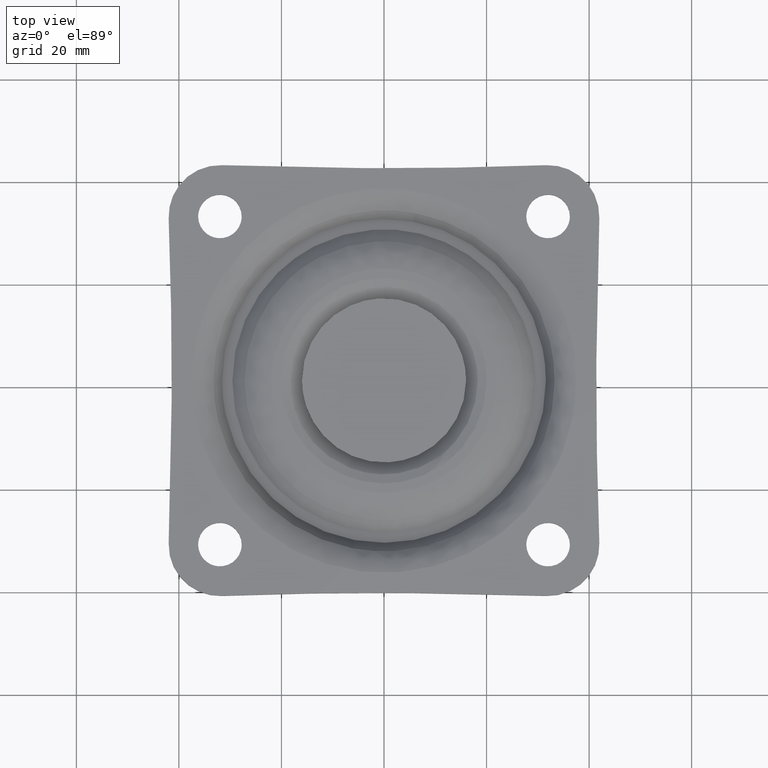
[diagram: clean part render]
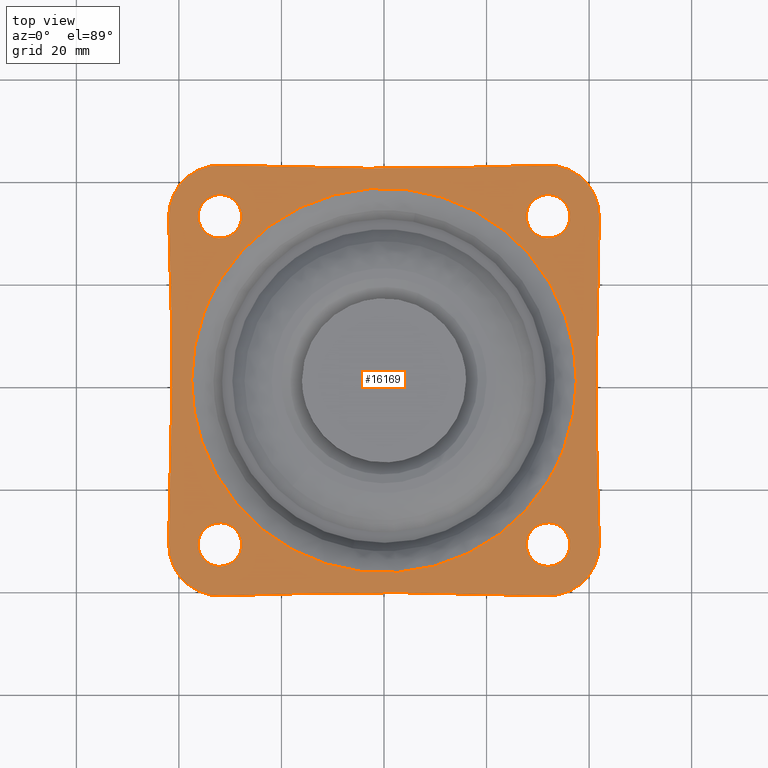
[diagram: same view with one face highlighted and labeled with its STEP entity id]
A machine part, top view. The second image highlights one B-rep face of the part: STEP entity #16169.
In plain terms, the highlighted face is a freeform B-spline surface patch.
Its self-contained STEP definition (entity closure, byte-faithful):
#14494=CARTESIAN_POINT('',(-31.666548842918960,36.236902668347042,1.179612E-016));
#14495=VERTEX_POINT('',#14494);
#14501=CARTESIAN_POINT('',(-36.250000000000007,32.000003999999947,0.0));
#14502=VERTEX_POINT('',#14501);
#14503=CARTESIAN_POINT('',(-31.666548842918974,36.236902668347042,0.0));
#14504=CARTESIAN_POINT('',(-31.833017045098011,36.250003999999947,0.0));
#14505=CARTESIAN_POINT('',(-32.0,36.250003999999947,0.0));
#14506=CARTESIAN_POINT('',(-36.250000000000014,36.250003999999954,0.0));
#14507=CARTESIAN_POINT('',(-36.250000000000007,32.000003999999947,0.0));
#14515=(BOUNDED_CURVE()B_SPLINE_CURVE(2,(#14503,#14504,#14505,#14506,#14507),.UNSPECIFIED.,.F.,.U.)B_SPLINE_CURVE_WITH_KNOTS((3,2,3),(0.736331300623150,0.750000000000000,1.0),.UNSPECIFIED.)CURVE()GEOMETRIC_REPRESENTATION_ITEM()RATIONAL_B_SPLINE_CURVE((0.969723356151746,0.983986122570084,1.0,0.707106781186548,1.0))REPRESENTATION_ITEM(''));
#14516=EDGE_CURVE('',#14495,#14502,#14515,.T.);
#14518=CARTESIAN_POINT('',(-32.333451157081043,27.763105331652859,1.179612E-016));
#14519=VERTEX_POINT('',#14518);
#14520=CARTESIAN_POINT('',(-36.250000000000007,32.000003999999947,0.0));
#14521=CARTESIAN_POINT('',(-36.250000000000021,28.071344410673664,0.0));
#14522=CARTESIAN_POINT('',(-32.333451157081043,27.763105331652866,0.0));
#14530=(BOUNDED_CURVE()B_SPLINE_CURVE(2,(#14520,#14521,#14522),.UNSPECIFIED.,.F.,.U.)B_SPLINE_CURVE_WITH_KNOTS((3,3),(0.0,0.236331300623150),.UNSPECIFIED.)CURVE()GEOMETRIC_REPRESENTATION_ITEM()RATIONAL_B_SPLINE_CURVE((1.0,0.723120658616464,0.969723356151745))REPRESENTATION_ITEM(''));
#14531=EDGE_CURVE('',#14502,#14519,#14530,.T.);
#14577=CARTESIAN_POINT('',(-27.750000000000000,32.000003999999947,0.0));
#14578=VERTEX_POINT('',#14577);
#14579=CARTESIAN_POINT('',(-32.333451157081051,27.763105331652870,0.0));
#14580=CARTESIAN_POINT('',(-32.166982954902011,27.750003999999954,0.0));
#14581=CARTESIAN_POINT('',(-32.0,27.750003999999951,0.0));
#14582=CARTESIAN_POINT('',(-27.749999999999989,27.750003999999954,0.0));
#14583=CARTESIAN_POINT('',(-27.750000000000000,32.000003999999947,0.0));
#14591=(BOUNDED_CURVE()B_SPLINE_CURVE(2,(#14579,#14580,#14581,#14582,#14583),.UNSPECIFIED.,.F.,.U.)B_SPLINE_CURVE_WITH_KNOTS((3,2,3),(0.236331300623149,0.250000000000000,0.500000000000000),.UNSPECIFIED.)CURVE()GEOMETRIC_REPRESENTATION_ITEM()RATIONAL_B_SPLINE_CURVE((0.969723356151744,0.983986122570083,1.0,0.707106781186548,1.0))REPRESENTATION_ITEM(''));
#14592=EDGE_CURVE('',#14519,#14578,#14591,.T.);
#14594=CARTESIAN_POINT('',(-27.750000000000000,32.000003999999947,0.0));
#14595=CARTESIAN_POINT('',(-27.749999999999993,35.928663589326256,0.0));
#14596=CARTESIAN_POINT('',(-31.666548842918974,36.236902668347042,0.0));
#14604=(BOUNDED_CURVE()B_SPLINE_CURVE(2,(#14594,#14595,#14596),.UNSPECIFIED.,.F.,.U.)B_SPLINE_CURVE_WITH_KNOTS((3,3),(0.500000000000000,0.736331300623150),.UNSPECIFIED.)CURVE()GEOMETRIC_REPRESENTATION_ITEM()RATIONAL_B_SPLINE_CURVE((1.0,0.723120658616464,0.969723356151746))REPRESENTATION_ITEM(''));
#14605=EDGE_CURVE('',#14578,#14495,#14604,.T.);
#14676=CARTESIAN_POINT('',(32.333451157081043,36.236902668347042,1.179612E-016));
#14677=VERTEX_POINT('',#14676);
#14683=CARTESIAN_POINT('',(27.750000000000000,32.000003999999947,0.0));
#14684=VERTEX_POINT('',#14683);
#14685=CARTESIAN_POINT('',(32.333451157081051,36.236902668347042,0.0));
#14686=CARTESIAN_POINT('',(32.166982954902004,36.250003999999947,0.0));
#14687=CARTESIAN_POINT('',(32.0,36.250003999999947,0.0));
#14688=CARTESIAN_POINT('',(27.749999999999989,36.250003999999954,0.0));
#14689=CARTESIAN_POINT('',(27.750000000000000,32.000003999999947,0.0));
#14697=(BOUNDED_CURVE()B_SPLINE_CURVE(2,(#14685,#14686,#14687,#14688,#14689),.UNSPECIFIED.,.F.,.U.)B_SPLINE_CURVE_WITH_KNOTS((3,2,3),(0.736331300623150,0.750000000000000,1.0),.UNSPECIFIED.)CURVE()GEOMETRIC_REPRESENTATION_ITEM()RATIONAL_B_SPLINE_CURVE((0.969723356151745,0.983986122570083,1.0,0.707106781186548,1.0))REPRESENTATION_ITEM(''));
#14698=EDGE_CURVE('',#14677,#14684,#14697,.T.);
#14700=CARTESIAN_POINT('',(31.666548842918960,27.763105331652859,1.179612E-016));
#14701=VERTEX_POINT('',#14700);
#14702=CARTESIAN_POINT('',(27.750000000000000,32.000003999999947,0.0));
#14703=CARTESIAN_POINT('',(27.750000000000000,28.071344410673664,0.0));
#14704=CARTESIAN_POINT('',(31.666548842918960,27.763105331652863,0.0));
#14712=(BOUNDED_CURVE()B_SPLINE_CURVE(2,(#14702,#14703,#14704),.UNSPECIFIED.,.F.,.U.)B_SPLINE_CURVE_WITH_KNOTS((3,3),(0.0,0.236331300623150),.UNSPECIFIED.)CURVE()GEOMETRIC_REPRESENTATION_ITEM()RATIONAL_B_SPLINE_CURVE((1.0,0.723120658616464,0.969723356151745))REPRESENTATION_ITEM(''));
#14713=EDGE_CURVE('',#14684,#14701,#14712,.T.);
#14759=CARTESIAN_POINT('',(36.250000000000007,32.000003999999947,0.0));
#14760=VERTEX_POINT('',#14759);
#14761=CARTESIAN_POINT('',(31.666548842918949,27.763105331652863,0.0));
#14762=CARTESIAN_POINT('',(31.833017045098000,27.750003999999951,0.0));
#14763=CARTESIAN_POINT('',(32.0,27.750003999999951,0.0));
#14764=CARTESIAN_POINT('',(36.250000000000014,27.750003999999954,0.0));
#14765=CARTESIAN_POINT('',(36.250000000000007,32.000003999999947,0.0));
#14773=(BOUNDED_CURVE()B_SPLINE_CURVE(2,(#14761,#14762,#14763,#14764,#14765),.UNSPECIFIED.,.F.,.U.)B_SPLINE_CURVE_WITH_KNOTS((3,2,3),(0.236331300623149,0.250000000000000,0.500000000000000),.UNSPECIFIED.)CURVE()GEOMETRIC_REPRESENTATION_ITEM()RATIONAL_B_SPLINE_CURVE((0.969723356151745,0.983986122570083,1.0,0.707106781186548,1.0))REPRESENTATION_ITEM(''));
#14774=EDGE_CURVE('',#14701,#14760,#14773,.T.);
#14776=CARTESIAN_POINT('',(36.250000000000007,32.000003999999947,0.0));
#14777=CARTESIAN_POINT('',(36.250000000000000,35.928663589326241,0.0));
#14778=CARTESIAN_POINT('',(32.333451157081051,36.236902668347042,0.0));
#14786=(BOUNDED_CURVE()B_SPLINE_CURVE(2,(#14776,#14777,#14778),.UNSPECIFIED.,.F.,.U.)B_SPLINE_CURVE_WITH_KNOTS((3,3),(0.500000000000000,0.736331300623150),.UNSPECIFIED.)CURVE()GEOMETRIC_REPRESENTATION_ITEM()RATIONAL_B_SPLINE_CURVE((1.0,0.723120658616464,0.969723356151745))REPRESENTATION_ITEM(''));
#14787=EDGE_CURVE('',#14760,#14677,#14786,.T.);
#14858=CARTESIAN_POINT('',(32.333451157081043,-27.763101331652908,1.179612E-016));
#14859=VERTEX_POINT('',#14858);
#14865=CARTESIAN_POINT('',(27.750000000000000,-32.0,0.0));
#14866=VERTEX_POINT('',#14865);
#14867=CARTESIAN_POINT('',(32.333451157081051,-27.763101331652916,0.0));
#14868=CARTESIAN_POINT('',(32.166982954902004,-27.749999999999996,0.0));
#14869=CARTESIAN_POINT('',(32.0,-27.750000000000000,0.0));
#14870=CARTESIAN_POINT('',(27.749999999999989,-27.749999999999989,0.0));
#14871=CARTESIAN_POINT('',(27.750000000000000,-32.0,0.0));
#14879=(BOUNDED_CURVE()B_SPLINE_CURVE(2,(#14867,#14868,#14869,#14870,#14871),.UNSPECIFIED.,.F.,.U.)B_SPLINE_CURVE_WITH_KNOTS((3,2,3),(0.736331300623150,0.750000000000000,1.0),.UNSPECIFIED.)CURVE()GEOMETRIC_REPRESENTATION_ITEM()RATIONAL_B_SPLINE_CURVE((0.969723356151745,0.983986122570083,1.0,0.707106781186548,1.0))REPRESENTATION_ITEM(''));
#14880=EDGE_CURVE('',#14859,#14866,#14879,.T.);
#14882=CARTESIAN_POINT('',(31.666548842918960,-36.236898668347088,1.179612E-016));
#14883=VERTEX_POINT('',#14882);
#14884=CARTESIAN_POINT('',(27.750000000000000,-32.0,0.0));
#14885=CARTESIAN_POINT('',(27.749999999999989,-35.928659589326294,0.0));
#14886=CARTESIAN_POINT('',(31.666548842918953,-36.236898668347102,0.0));
#14894=(BOUNDED_CURVE()B_SPLINE_CURVE(2,(#14884,#14885,#14886),.UNSPECIFIED.,.F.,.U.)B_SPLINE_CURVE_WITH_KNOTS((3,3),(0.0,0.236331300623149),.UNSPECIFIED.)CURVE()GEOMETRIC_REPRESENTATION_ITEM()RATIONAL_B_SPLINE_CURVE((1.0,0.723120658616464,0.969723356151745))REPRESENTATION_ITEM(''));
#14895=EDGE_CURVE('',#14866,#14883,#14894,.T.);
#14941=CARTESIAN_POINT('',(36.250000000000007,-32.0,0.0));
#14942=VERTEX_POINT('',#14941);
#14943=CARTESIAN_POINT('',(31.666548842918960,-36.236898668347102,0.0));
#14944=CARTESIAN_POINT('',(31.833017045098003,-36.250000000000000,0.0));
#14945=CARTESIAN_POINT('',(32.0,-36.250000000000007,0.0));
#14946=CARTESIAN_POINT('',(36.250000000000014,-36.250000000000014,0.0));
#14947=CARTESIAN_POINT('',(36.250000000000007,-32.0,0.0));
#14955=(BOUNDED_CURVE()B_SPLINE_CURVE(2,(#14943,#14944,#14945,#14946,#14947),.UNSPECIFIED.,.F.,.U.)B_SPLINE_CURVE_WITH_KNOTS((3,2,3),(0.236331300623150,0.250000000000000,0.500000000000000),.UNSPECIFIED.)CURVE()GEOMETRIC_REPRESENTATION_ITEM()RATIONAL_B_SPLINE_CURVE((0.969723356151745,0.983986122570083,1.0,0.707106781186548,1.0))REPRESENTATION_ITEM(''));
#14956=EDGE_CURVE('',#14883,#14942,#14955,.T.);
#14958=CARTESIAN_POINT('',(36.250000000000007,-32.0,0.0));
#14959=CARTESIAN_POINT('',(36.250000000000000,-28.071340410673709,0.0));
#14960=CARTESIAN_POINT('',(32.333451157081051,-27.763101331652916,0.0));
#14968=(BOUNDED_CURVE()B_SPLINE_CURVE(2,(#14958,#14959,#14960),.UNSPECIFIED.,.F.,.U.)B_SPLINE_CURVE_WITH_KNOTS((3,3),(0.500000000000000,0.736331300623150),.UNSPECIFIED.)CURVE()GEOMETRIC_REPRESENTATION_ITEM()RATIONAL_B_SPLINE_CURVE((1.0,0.723120658616464,0.969723356151745))REPRESENTATION_ITEM(''));
#14969=EDGE_CURVE('',#14942,#14859,#14968,.T.);
#15040=CARTESIAN_POINT('',(-31.666548842918960,-27.763101331652908,1.179612E-016));
#15041=VERTEX_POINT('',#15040);
#15047=CARTESIAN_POINT('',(-36.250000000000007,-32.0,0.0));
#15048=VERTEX_POINT('',#15047);
#15049=CARTESIAN_POINT('',(-31.666548842918974,-27.763101331652908,0.0));
#15050=CARTESIAN_POINT('',(-31.833017045098011,-27.750000000000004,0.0));
#15051=CARTESIAN_POINT('',(-32.0,-27.750000000000000,0.0));
#15052=CARTESIAN_POINT('',(-36.250000000000014,-27.749999999999989,0.0));
#15053=CARTESIAN_POINT('',(-36.250000000000007,-32.0,0.0));
#15061=(BOUNDED_CURVE()B_SPLINE_CURVE(2,(#15049,#15050,#15051,#15052,#15053),.UNSPECIFIED.,.F.,.U.)B_SPLINE_CURVE_WITH_KNOTS((3,2,3),(0.736331300623150,0.750000000000000,1.0),.UNSPECIFIED.)CURVE()GEOMETRIC_REPRESENTATION_ITEM()RATIONAL_B_SPLINE_CURVE((0.969723356151746,0.983986122570084,1.0,0.707106781186548,1.0))REPRESENTATION_ITEM(''));
#15062=EDGE_CURVE('',#15041,#15048,#15061,.T.);
#15064=CARTESIAN_POINT('',(-32.333451157081043,-36.236898668347102,1.179612E-016));
#15065=VERTEX_POINT('',#15064);
#15066=CARTESIAN_POINT('',(-36.250000000000007,-32.0,0.0));
#15067=CARTESIAN_POINT('',(-36.250000000000000,-35.928659589326301,0.0));
#15068=CARTESIAN_POINT('',(-32.333451157081051,-36.236898668347095,0.0));
#15076=(BOUNDED_CURVE()B_SPLINE_CURVE(2,(#15066,#15067,#15068),.UNSPECIFIED.,.F.,.U.)B_SPLINE_CURVE_WITH_KNOTS((3,3),(0.0,0.236331300623150),.UNSPECIFIED.)CURVE()GEOMETRIC_REPRESENTATION_ITEM()RATIONAL_B_SPLINE_CURVE((1.0,0.723120658616464,0.969723356151745))REPRESENTATION_ITEM(''));
#15077=EDGE_CURVE('',#15048,#15065,#15076,.T.);
#15123=CARTESIAN_POINT('',(-27.750000000000000,-32.0,0.0));
#15124=VERTEX_POINT('',#15123);
#15125=CARTESIAN_POINT('',(-32.333451157081051,-36.236898668347095,0.0));
#15126=CARTESIAN_POINT('',(-32.166982954902004,-36.250000000000007,0.0));
#15127=CARTESIAN_POINT('',(-32.0,-36.250000000000007,0.0));
#15128=CARTESIAN_POINT('',(-27.749999999999989,-36.250000000000014,0.0));
#15129=CARTESIAN_POINT('',(-27.750000000000000,-32.0,0.0));
#15137=(BOUNDED_CURVE()B_SPLINE_CURVE(2,(#15125,#15126,#15127,#15128,#15129),.UNSPECIFIED.,.F.,.U.)B_SPLINE_CURVE_WITH_KNOTS((3,2,3),(0.236331300623150,0.250000000000000,0.500000000000000),.UNSPECIFIED.)CURVE()GEOMETRIC_REPRESENTATION_ITEM()RATIONAL_B_SPLINE_CURVE((0.969723356151745,0.983986122570083,1.0,0.707106781186548,1.0))REPRESENTATION_ITEM(''));
#15138=EDGE_CURVE('',#15065,#15124,#15137,.T.);
#15140=CARTESIAN_POINT('',(-27.750000000000000,-32.0,0.0));
#15141=CARTESIAN_POINT('',(-27.749999999999993,-28.071340410673702,0.0));
#15142=CARTESIAN_POINT('',(-31.666548842918974,-27.763101331652908,0.0));
#15150=(BOUNDED_CURVE()B_SPLINE_CURVE(2,(#15140,#15141,#15142),.UNSPECIFIED.,.F.,.U.)B_SPLINE_CURVE_WITH_KNOTS((3,3),(0.500000000000000,0.736331300623150),.UNSPECIFIED.)CURVE()GEOMETRIC_REPRESENTATION_ITEM()RATIONAL_B_SPLINE_CURVE((1.0,0.723120658616464,0.969723356151746))REPRESENTATION_ITEM(''));
#15151=EDGE_CURVE('',#15124,#15041,#15150,.T.);
#15478=CARTESIAN_POINT('',(-31.914067990563421,19.695143982894379,-7.925526E-016));
#15479=VERTEX_POINT('',#15478);
#15493=CARTESIAN_POINT('',(-37.502085706826037,0.0,0.0));
#15494=VERTEX_POINT('',#15493);
#15495=CARTESIAN_POINT('',(-37.502085706826037,0.0,0.0));
#15496=CARTESIAN_POINT('',(-37.502085705981443,10.640303996957126,-3.962763E-016));
#15497=CARTESIAN_POINT('',(-31.914067990563424,19.695143982894376,-7.925526E-016));
#15505=(BOUNDED_CURVE()B_SPLINE_CURVE(2,(#15495,#15496,#15497),.UNSPECIFIED.,.F.,.U.)B_SPLINE_CURVE_WITH_KNOTS((3,3),(0.0,0.089762955612182),.UNSPECIFIED.)CURVE()GEOMETRIC_REPRESENTATION_ITEM()RATIONAL_B_SPLINE_CURVE((1.0,0.894836156002155,0.865190851690591))REPRESENTATION_ITEM(''));
#15506=EDGE_CURVE('',#15494,#15479,#15505,.T.);
#15508=CARTESIAN_POINT('',(31.914067990563421,-19.695143982894390,-7.315870E-016));
#15509=VERTEX_POINT('',#15508);
#15510=CARTESIAN_POINT('',(31.914067990563421,-19.695143982894390,-7.315870E-016));
#15511=CARTESIAN_POINT('',(30.619805458893630,-21.792971788016160,-7.247685E-016));
#15512=CARTESIAN_POINT('',(27.923524103680140,-25.327808713038898,-7.082515E-016));
#15513=CARTESIAN_POINT('',(23.905755037616021,-29.013462607860870,-6.792623E-016));
#15514=CARTESIAN_POINT('',(20.413693390166380,-31.524900545341350,-6.521511E-016));
#15515=CARTESIAN_POINT('',(17.628572245231979,-33.156656483443300,-6.295010E-016));
#15516=CARTESIAN_POINT('',(14.426538910926590,-34.669942798833929,-6.024565E-016));
#15517=CARTESIAN_POINT('',(10.744381102255600,-36.026675445411257,-5.702956E-016));
#15518=CARTESIAN_POINT('',(6.428298811534779,-37.044849591556087,-5.310144E-016));
#15519=CARTESIAN_POINT('',(1.204781175124685,-37.610192839807247,-4.816291E-016));
#15520=CARTESIAN_POINT('',(-3.930664690330918,-37.436758115847731,-4.310582E-016));
#15521=CARTESIAN_POINT('',(-8.663399511469756,-36.561015337947516,-3.824718E-016));
#15522=CARTESIAN_POINT('',(-13.150571636092421,-35.226522354320572,-3.350110E-016));
#15523=CARTESIAN_POINT('',(-17.216128759789889,-33.445103135920426,-2.904258E-016));
#15524=CARTESIAN_POINT('',(-21.378637659211499,-30.910333849212190,-2.428100E-016));
#15525=CARTESIAN_POINT('',(-24.678287439665521,-28.345703005160338,-2.035279E-016));
#15526=CARTESIAN_POINT('',(-27.437949999820109,-25.645612171143650,-1.691379E-016));
#15527=CARTESIAN_POINT('',(-30.013724971431820,-22.604822877068852,-1.355987E-016));
#15528=CARTESIAN_POINT('',(-32.042181816165908,-19.618152100544059,-1.075478E-016));
#15529=CARTESIAN_POINT('',(-34.137421278383748,-15.717846934989421,-7.631707E-017));
#15530=CARTESIAN_POINT('',(-35.624765904471147,-12.012711654500441,-5.155582E-017));
#15531=CARTESIAN_POINT('',(-36.683549268820713,-8.038325081614559,-3.022960E-017));
#15532=CARTESIAN_POINT('',(-37.334056569965988,-4.234590536484398,-1.335795E-017));
#15533=CARTESIAN_POINT('',(-37.502143252897547,-1.580073506177790,-4.372207E-018));
#15534=CARTESIAN_POINT('',(-37.502085706826037,0.0,0.0));
#15535=B_SPLINE_CURVE_WITH_KNOTS('',3,(#15510,#15511,#15512,#15513,#15514,#15515,#15516,#15517,#15518,#15519,#15520,#15521,#15522,#15523,#15524,#15525,#15526,#15527,#15528,#15529,#15530,#15531,#15532,#15533,#15534),.UNSPECIFIED.,.F.,.U.,(4,1,1,1,1,1,1,1,1,1,1,1,1,1,1,1,1,1,1,1,1,1,4),(0.000000063989489,7.394820992053340,13.272759540853929,16.306532607699861,20.288364144795981,22.942941252363969,26.924734203500289,32.044268597981258,36.215681808169919,42.662384551423507,47.402664824145383,50.626067850185521,56.693612256004577,60.675428589260122,65.226100874294559,69.207934392970316,72.241709457906296,77.171613979242522,80.015754333913350,85.514507913020026,89.117109490335267,92.340499205824514,97.080715608475828),.UNSPECIFIED.);
#15536=EDGE_CURVE('',#15509,#15494,#15535,.T.);
#15585=CARTESIAN_POINT('',(37.502085706826037,0.0,0.0));
#15586=VERTEX_POINT('',#15585);
#15587=CARTESIAN_POINT('',(37.502085706826037,0.0,0.0));
#15588=CARTESIAN_POINT('',(37.502085705981450,-10.640303996957131,-3.657935E-016));
#15589=CARTESIAN_POINT('',(31.914067990563417,-19.695143982894383,-7.315870E-016));
#15597=(BOUNDED_CURVE()B_SPLINE_CURVE(2,(#15587,#15588,#15589),.UNSPECIFIED.,.F.,.U.)B_SPLINE_CURVE_WITH_KNOTS((3,3),(0.500000000000000,0.589762955612183),.UNSPECIFIED.)CURVE()GEOMETRIC_REPRESENTATION_ITEM()RATIONAL_B_SPLINE_CURVE((1.0,0.894836156002155,0.865190851690591))REPRESENTATION_ITEM(''));
#15598=EDGE_CURVE('',#15586,#15509,#15597,.T.);
#15600=CARTESIAN_POINT('',(-31.914067990563421,19.695143982894379,-7.925526E-016));
#15601=CARTESIAN_POINT('',(-31.084287959028622,21.039814182169589,-7.878159E-016));
#15602=CARTESIAN_POINT('',(-29.217813535415239,23.675725806802330,-7.759959E-016));
#15603=CARTESIAN_POINT('',(-26.039898205609671,27.121077407468022,-7.527450E-016));
#15604=CARTESIAN_POINT('',(-22.703991595458231,29.941523364708459,-7.259511E-016));
#15605=CARTESIAN_POINT('',(-19.555566011488789,32.064045151172117,-6.990458E-016));
#15606=CARTESIAN_POINT('',(-16.501482918728460,33.731044151020193,-6.717718E-016));
#15607=CARTESIAN_POINT('',(-13.079709673876399,35.222983132939412,-6.400876E-016));
#15608=CARTESIAN_POINT('',(-8.851856165872862,36.553985359301052,-5.994032E-016));
#15609=CARTESIAN_POINT('',(-4.233508979410042,37.363493447928882,-5.530291E-016));
#15610=CARTESIAN_POINT('',(0.382345080853592,37.581132368870087,-5.049069E-016));
#15611=CARTESIAN_POINT('',(4.741047625138749,37.290272967682171,-4.579774E-016));
#15612=CARTESIAN_POINT('',(8.724042873997638,36.543000902052000,-4.136496E-016));
#15613=CARTESIAN_POINT('',(13.150567915739639,35.226522513832897,-3.629286E-016));
#15614=CARTESIAN_POINT('',(17.564622789657651,33.292416243312253,-3.104877E-016));
#15615=CARTESIAN_POINT('',(22.281668464818988,30.321048697371531,-2.517353E-016));
#15616=CARTESIAN_POINT('',(25.857295111729080,27.286648735088150,-2.048551E-016));
#15617=CARTESIAN_POINT('',(29.085856594280909,23.809116157060600,-1.603138E-016));
#15618=CARTESIAN_POINT('',(31.593786737747131,20.383854452889029,-1.235439E-016));
#15619=CARTESIAN_POINT('',(33.626167751635542,16.734268524099502,-9.112643E-017));
#15620=CARTESIAN_POINT('',(35.070335912331217,13.430163491599780,-6.596029E-017));
#15621=CARTESIAN_POINT('',(36.328410806519642,9.647461776089989,-4.132570E-017));
#15622=CARTESIAN_POINT('',(37.268730390661773,5.119465505853970,-1.781431E-017));
#15623=CARTESIAN_POINT('',(37.502159933510242,1.706496777955555,-5.115407E-018));
#15624=CARTESIAN_POINT('',(37.502085706826037,0.0,0.0));
#15625=B_SPLINE_CURVE_WITH_KNOTS('',3,(#15600,#15601,#15602,#15603,#15604,#15605,#15606,#15607,#15608,#15609,#15610,#15611,#15612,#15613,#15614,#15615,#15616,#15617,#15618,#15619,#15620,#15621,#15622,#15623,#15624),.UNSPECIFIED.,.F.,.U.,(4,1,1,1,1,1,1,1,1,1,1,1,1,1,1,1,1,1,1,1,1,1,4),(0.000000063994136,4.740258845314230,9.670151341734950,14.031202597090809,17.823421638121520,21.046801718666810,24.459815151004261,29.010488594254060,34.319605386957200,38.490917560580073,42.852014610375562,47.402664824148538,50.626067850188342,56.693612256006972,61.813111229646083,67.311825348601644,70.724821768479003,76.033924119183553,80.015754333914870,83.239146683980351,86.841748705107406,91.961230190176920,97.080715608475785),.UNSPECIFIED.);
#15626=EDGE_CURVE('',#15479,#15586,#15625,.T.);
#15817=CARTESIAN_POINT('',(41.992948058225352,31.625154184200799,0.0));
#15818=VERTEX_POINT('',#15817);
#15824=CARTESIAN_POINT('',(41.992949260289649,-31.625149835499101,0.0));
#15825=VERTEX_POINT('',#15824);
#15826=CARTESIAN_POINT('',(41.992948058225352,31.625154184200799,0.0));
#15827=CARTESIAN_POINT('',(40.806592197343292,0.000002151804351,0.0));
#15828=CARTESIAN_POINT('',(41.992949395424752,-31.625149830429599,0.0));
#15836=(BOUNDED_CURVE()B_SPLINE_CURVE(2,(#15826,#15827,#15828),.UNSPECIFIED.,.F.,.U.)CURVE()GEOMETRIC_REPRESENTATION_ITEM()QUASI_UNIFORM_CURVE()RATIONAL_B_SPLINE_CURVE((1.0,0.999297126544997,1.0))REPRESENTATION_ITEM(''));
#15837=EDGE_CURVE('',#15818,#15825,#15836,.T.);
#15863=CARTESIAN_POINT('',(31.625108336017298,-41.992987745339192,0.0));
#15864=VERTEX_POINT('',#15863);
#15865=CARTESIAN_POINT('',(31.625108336017298,-41.992987745339192,0.0));
#15866=CARTESIAN_POINT('',(32.438866516035660,-42.023725480044803,0.0));
#15867=CARTESIAN_POINT('',(33.987721461676863,-41.891954627832718,0.0));
#15868=CARTESIAN_POINT('',(35.954753324020778,-41.248672035286582,0.0));
#15869=CARTESIAN_POINT('',(37.386247948619307,-40.461776300572431,0.0));
#15870=CARTESIAN_POINT('',(38.455669814395861,-39.669625677039349,0.0));
#15871=CARTESIAN_POINT('',(39.514451443713043,-38.664033543589511,0.0));
#15872=CARTESIAN_POINT('',(40.557385808186083,-37.293339241459961,0.0));
#15873=CARTESIAN_POINT('',(41.375202283784013,-35.632214303959309,0.0));
#15874=CARTESIAN_POINT('',(41.917241476087320,-33.729492134731210,0.0));
#15875=CARTESIAN_POINT('',(42.022030884877331,-32.396072057931050,0.0));
#15876=CARTESIAN_POINT('',(41.992949260289649,-31.625149835499101,0.0));
#15877=B_SPLINE_CURVE_WITH_KNOTS('',3,(#15865,#15866,#15867,#15868,#15869,#15870,#15871,#15872,#15873,#15874,#15875,#15876),.UNSPECIFIED.,.F.,.U.,(4,1,1,1,1,1,1,1,1,4),(0.000000029347877,2.442969275225778,4.628815183901805,6.171750811582196,7.328954961936727,8.614725557168637,10.543391547728399,12.472071925009089,14.143601867415430,16.457989066502041),.UNSPECIFIED.);
#15878=EDGE_CURVE('',#15864,#15825,#15877,.T.);
#15904=CARTESIAN_POINT('',(-31.625081056370949,-41.992986306088547,0.0));
#15905=VERTEX_POINT('',#15904);
#15906=CARTESIAN_POINT('',(31.625108336017391,-41.992987745339207,0.0));
#15907=CARTESIAN_POINT('',(0.000013666818445,-40.806635694541903,0.0));
#15908=CARTESIAN_POINT('',(-31.625081040790871,-41.992986721413942,0.0));
#15916=(BOUNDED_CURVE()B_SPLINE_CURVE(2,(#15906,#15907,#15908),.UNSPECIFIED.,.F.,.U.)CURVE()GEOMETRIC_REPRESENTATION_ITEM()QUASI_UNIFORM_CURVE()RATIONAL_B_SPLINE_CURVE((1.0,0.999297129907167,1.0))REPRESENTATION_ITEM(''));
#15917=EDGE_CURVE('',#15864,#15905,#15916,.T.);
#15943=CARTESIAN_POINT('',(-41.992918253317150,-31.625148198415950,0.0));
#15944=VERTEX_POINT('',#15943);
#15945=CARTESIAN_POINT('',(-41.992918253317150,-31.625148198415950,0.0));
#15946=CARTESIAN_POINT('',(-42.023625952349491,-32.438906082953501,0.0));
#15947=CARTESIAN_POINT('',(-41.917477891468607,-33.686573302525737,0.0));
#15948=CARTESIAN_POINT('',(-41.480339239338669,-35.258971899345212,0.0));
#15949=CARTESIAN_POINT('',(-40.937526632884079,-36.567581982327241,0.0));
#15950=CARTESIAN_POINT('',(-40.095298198310452,-37.969261280182103,0.0));
#15951=CARTESIAN_POINT('',(-39.007108790404637,-39.191173350264187,0.0));
#15952=CARTESIAN_POINT('',(-37.747840473078213,-40.228312128190232,0.0));
#15953=CARTESIAN_POINT('',(-36.530631834316452,-40.959762953718510,0.0));
#15954=CARTESIAN_POINT('',(-35.019173639070800,-41.575417539669957,0.0));
#15955=CARTESIAN_POINT('',(-33.427939142707778,-41.952236332810962,0.0));
#15956=CARTESIAN_POINT('',(-32.224678796352883,-42.015527989643772,0.0));
#15957=CARTESIAN_POINT('',(-31.625081056370949,-41.992986306088547,0.0));
#15958=B_SPLINE_CURVE_WITH_KNOTS('',3,(#15945,#15946,#15947,#15948,#15949,#15950,#15951,#15952,#15953,#15954,#15955,#15956,#15957),.UNSPECIFIED.,.F.,.U.,(4,1,1,1,1,1,1,1,1,1,4),(0.000000029323044,2.442968682533385,3.728758524585171,4.885971854338695,6.686058768304182,8.614723467282079,9.771927575389821,11.572014865880019,12.857806548028060,14.657914119143291,16.457985073782542),.UNSPECIFIED.);
#15959=EDGE_CURVE('',#15944,#15905,#15958,.T.);
#15985=CARTESIAN_POINT('',(-41.992915299545899,31.625148881960602,0.0));
#15986=VERTEX_POINT('',#15985);
#15987=CARTESIAN_POINT('',(-41.992918253317193,-31.625148198416021,0.0));
#15988=CARTESIAN_POINT('',(-40.806561972777210,0.000000286368831,0.0));
#15989=CARTESIAN_POINT('',(-41.992915652550593,31.625148868718089,0.0));
#15997=(BOUNDED_CURVE()B_SPLINE_CURVE(2,(#15987,#15988,#15989),.UNSPECIFIED.,.F.,.U.)CURVE()GEOMETRIC_REPRESENTATION_ITEM()QUASI_UNIFORM_CURVE()RATIONAL_B_SPLINE_CURVE((1.0,0.999297128224654,1.0))REPRESENTATION_ITEM(''));
#15998=EDGE_CURVE('',#15944,#15986,#15997,.T.);
#16024=CARTESIAN_POINT('',(-31.625078908228200,41.992986641414049,0.0));
#16025=VERTEX_POINT('',#16024);
#16026=CARTESIAN_POINT('',(-31.625078908228200,41.992986641414049,0.0));
#16027=CARTESIAN_POINT('',(-32.353172681482100,42.020422943728121,0.0));
#16028=CARTESIAN_POINT('',(-33.514258566841249,41.936718372080527,0.0));
#16029=CARTESIAN_POINT('',(-35.014050726692652,41.561067362164572,0.0));
#16030=CARTESIAN_POINT('',(-36.456429056327487,41.005877475131257,0.0));
#16031=CARTESIAN_POINT('',(-37.717733181793932,40.258899758232353,0.0));
#16032=CARTESIAN_POINT('',(-38.969826814993887,39.213987582914513,0.0));
#16033=CARTESIAN_POINT('',(-39.985305412920127,38.102804142109640,0.0));
#16034=CARTESIAN_POINT('',(-40.978937480771002,36.541778326536701,0.0));
#16035=CARTESIAN_POINT('',(-41.608492986738099,34.937434005376232,0.0));
#16036=CARTESIAN_POINT('',(-41.961152034436083,33.256096011681187,0.0));
#16037=CARTESIAN_POINT('',(-42.015466579367768,32.224748297103488,0.0));
#16038=CARTESIAN_POINT('',(-41.992915299545899,31.625148881960602,0.0));
#16039=B_SPLINE_CURVE_WITH_KNOTS('',3,(#16026,#16027,#16028,#16029,#16030,#16031,#16032,#16033,#16034,#16035,#16036,#16037,#16038),.UNSPECIFIED.,.F.,.U.,(4,1,1,1,1,1,1,1,1,1,4),(0.000000029298832,2.185812144566963,3.471599384476802,4.628813650030267,6.814637342224206,7.843263740711501,9.514771748703666,11.314855741935331,13.372122286249940,14.657912818025791,16.457983612886299),.UNSPECIFIED.);
#16040=EDGE_CURVE('',#16025,#15986,#16039,.T.);
#16066=CARTESIAN_POINT('',(31.625108336016851,41.992987745338048,0.0));
#16067=VERTEX_POINT('',#16066);
#16068=CARTESIAN_POINT('',(-31.625078908228112,41.992986641414042,0.0));
#16069=CARTESIAN_POINT('',(0.000014734599592,40.806635734596426,0.0));
#16070=CARTESIAN_POINT('',(31.625108336016961,41.992987745338112,0.0));
#16078=(BOUNDED_CURVE()B_SPLINE_CURVE(2,(#16068,#16069,#16070),.UNSPECIFIED.,.F.,.U.)CURVE()GEOMETRIC_REPRESENTATION_ITEM()QUASI_UNIFORM_CURVE()RATIONAL_B_SPLINE_CURVE((1.0,0.999297129954580,1.0))REPRESENTATION_ITEM(''));
#16079=EDGE_CURVE('',#16025,#16067,#16078,.T.);
#16105=CARTESIAN_POINT('',(41.992948058225352,31.625154184200799,0.0));
#16106=CARTESIAN_POINT('',(42.023682453903781,32.438913869556238,0.0));
#16107=CARTESIAN_POINT('',(41.891905204095657,33.987755417138992,0.0));
#16108=CARTESIAN_POINT('',(41.195055424325282,36.118744073249502,0.0));
#16109=CARTESIAN_POINT('',(40.239443088691452,37.756080397519042,0.0));
#16110=CARTESIAN_POINT('',(39.268494881579741,38.904449777521528,0.0));
#16111=CARTESIAN_POINT('',(38.260711928980697,39.837369375433951,0.0));
#16112=CARTESIAN_POINT('',(37.204506737903223,40.578442240194860,0.0));
#16113=CARTESIAN_POINT('',(35.788566932725530,41.298389223399361,0.0));
#16114=CARTESIAN_POINT('',(33.987877970693603,41.887399752423853,0.0));
#16115=CARTESIAN_POINT('',(32.481691048677803,42.025370530796913,0.0));
#16116=CARTESIAN_POINT('',(31.625108336016851,41.992987745338048,0.0));
#16117=B_SPLINE_CURVE_WITH_KNOTS('',3,(#16105,#16106,#16107,#16108,#16109,#16110,#16111,#16112,#16113,#16114,#16115,#16116),.UNSPECIFIED.,.F.,.U.,(4,1,1,1,1,1,1,1,1,4),(-0.000000094885387,2.442968379629118,4.628813598116899,6.686058154966455,8.100416944660809,9.129034967602777,10.800543140064230,11.957751221129600,13.886439092191941,16.457983742720330),.UNSPECIFIED.);
#16118=EDGE_CURVE('',#15818,#16067,#16117,.T.);
#16124=CARTESIAN_POINT('',(-46.194085812739807,46.194161494424037,0.0));
#16125=CARTESIAN_POINT('',(46.194117570604483,46.194161494424037,0.0));
#16126=CARTESIAN_POINT('',(-46.194085812739807,-46.194161494425202,0.0));
#16127=CARTESIAN_POINT('',(46.194117570604483,-46.194161494425202,0.0));
#16128=B_SPLINE_SURFACE_WITH_KNOTS('',1,1,((#16124,#16126),(#16125,#16127)),.UNSPECIFIED.,.F.,.F.,.U.,(2,2),(2,2),(0.0,92.388203383344290),(0.0,92.388322988849239),.UNSPECIFIED.);
#16129=ORIENTED_EDGE('',*,*,#16118,.T.);
#16130=ORIENTED_EDGE('',*,*,#16079,.F.);
#16131=ORIENTED_EDGE('',*,*,#16040,.T.);
#16132=ORIENTED_EDGE('',*,*,#15998,.F.);
#16133=ORIENTED_EDGE('',*,*,#15959,.T.);
#16134=ORIENTED_EDGE('',*,*,#15917,.F.);
#16135=ORIENTED_EDGE('',*,*,#15878,.T.);
#16136=ORIENTED_EDGE('',*,*,#15837,.F.);
#16137=EDGE_LOOP('',(#16129,#16130,#16131,#16132,#16133,#16134,#16135,#16136));
#16138=FACE_OUTER_BOUND('',#16137,.T.);
#16139=ORIENTED_EDGE('',*,*,#15506,.T.);
#16140=ORIENTED_EDGE('',*,*,#15626,.T.);
#16141=ORIENTED_EDGE('',*,*,#15598,.T.);
#16142=ORIENTED_EDGE('',*,*,#15536,.T.);
#16143=EDGE_LOOP('',(#16139,#16140,#16141,#16142));
#16144=FACE_BOUND('',#16143,.T.);
#16145=ORIENTED_EDGE('',*,*,#15151,.F.);
#16146=ORIENTED_EDGE('',*,*,#15138,.F.);
#16147=ORIENTED_EDGE('',*,*,#15077,.F.);
#16148=ORIENTED_EDGE('',*,*,#15062,.F.);
#16149=EDGE_LOOP('',(#16145,#16146,#16147,#16148));
#16150=FACE_BOUND('',#16149,.T.);
#16151=ORIENTED_EDGE('',*,*,#14969,.F.);
#16152=ORIENTED_EDGE('',*,*,#14956,.F.);
#16153=ORIENTED_EDGE('',*,*,#14895,.F.);
#16154=ORIENTED_EDGE('',*,*,#14880,.F.);
#16155=EDGE_LOOP('',(#16151,#16152,#16153,#16154));
#16156=FACE_BOUND('',#16155,.T.);
#16157=ORIENTED_EDGE('',*,*,#14787,.F.);
#16158=ORIENTED_EDGE('',*,*,#14774,.F.);
#16159=ORIENTED_EDGE('',*,*,#14713,.F.);
#16160=ORIENTED_EDGE('',*,*,#14698,.F.);
#16161=EDGE_LOOP('',(#16157,#16158,#16159,#16160));
#16162=FACE_BOUND('',#16161,.T.);
#16163=ORIENTED_EDGE('',*,*,#14605,.F.);
#16164=ORIENTED_EDGE('',*,*,#14592,.F.);
#16165=ORIENTED_EDGE('',*,*,#14531,.F.);
#16166=ORIENTED_EDGE('',*,*,#14516,.F.);
#16167=EDGE_LOOP('',(#16163,#16164,#16165,#16166));
#16168=FACE_BOUND('',#16167,.T.);
#16169=ADVANCED_FACE('',(#16138,#16144,#16150,#16156,#16162,#16168),#16128,.F.);